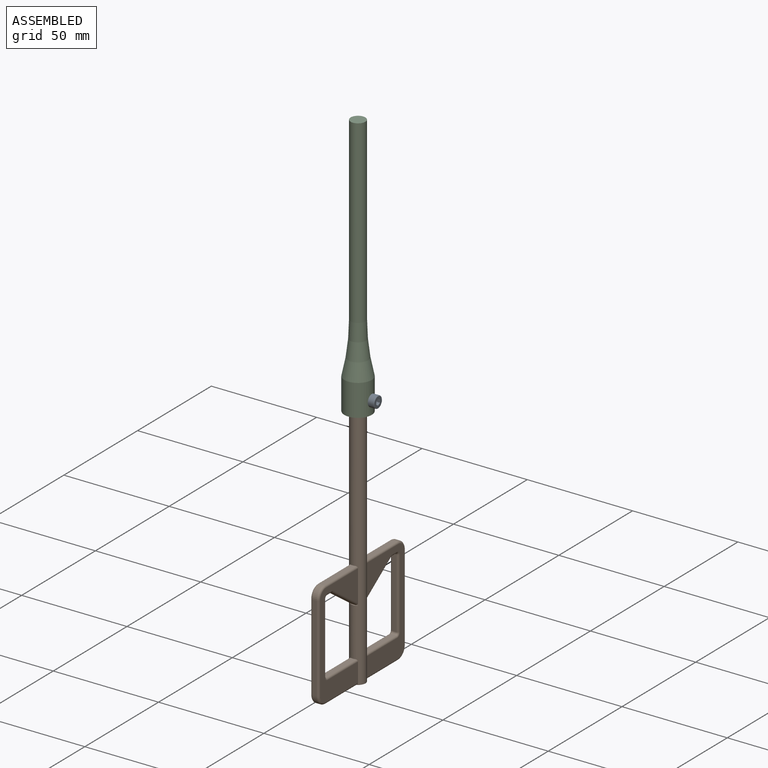
[diagram: assembled view]
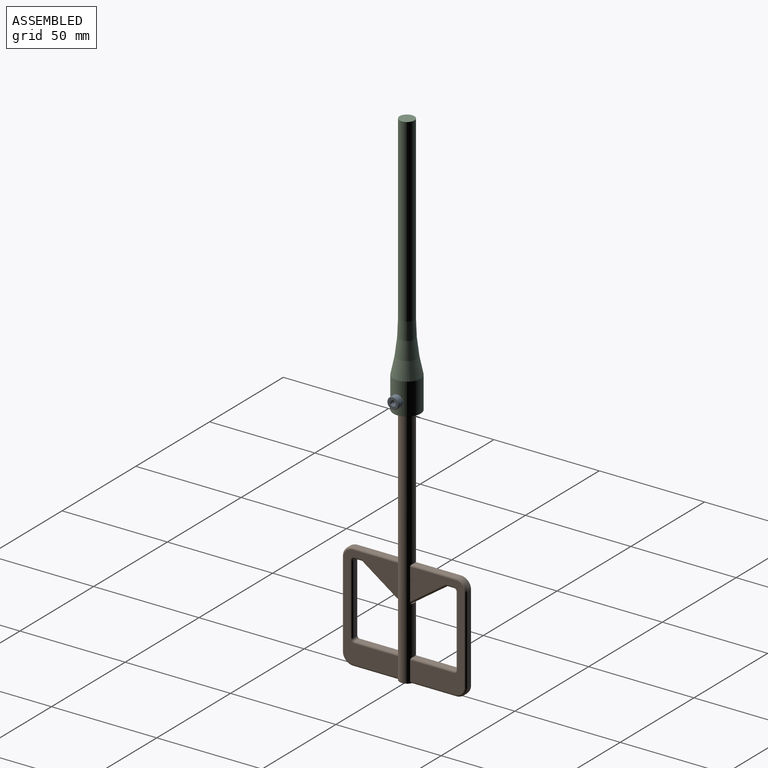
[diagram: assembled view, second angle]
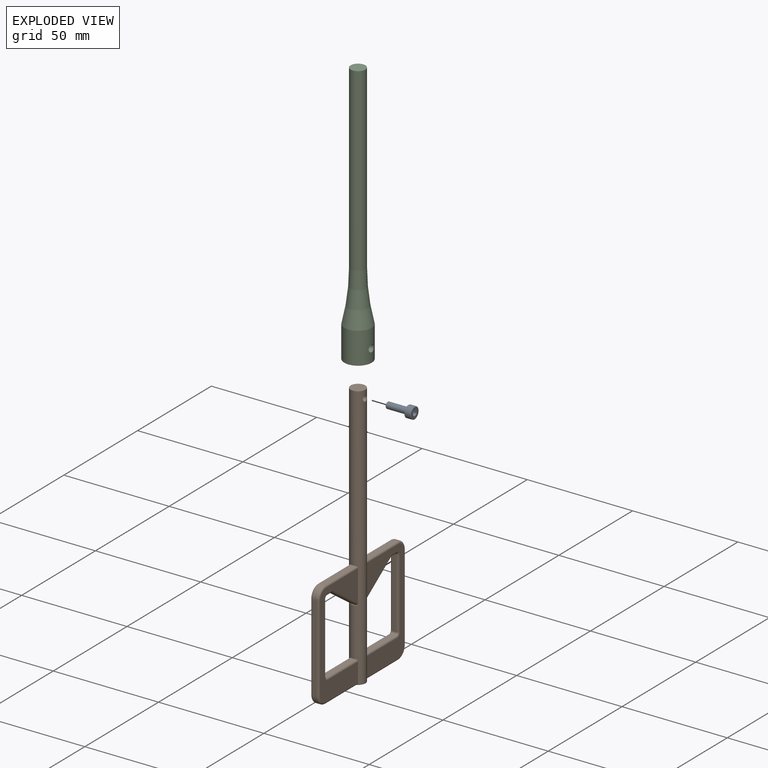
[diagram: exploded view]
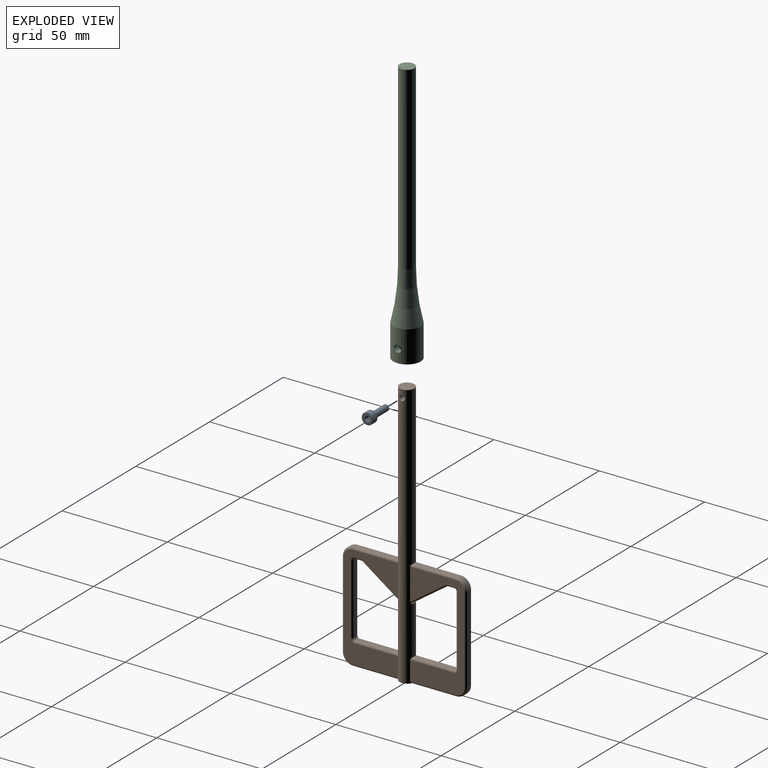
[diagram: exploded view, second angle]
ASSEMBLY  parts=3 mates=2
PART A: 18 faces, bbox 6x6x13 mm
  f0: cone r=1.36mm half-angle=45deg, axis (0,0,1), area 3.3mm2, adj f1,f16
  f1: cylinder r=1.5mm len=9.26mm, axis (0,0,-1), area 87.3mm2, adj f0,f15
  f2: cone r=1.36mm half-angle=45deg, axis (0,0,1), area 3.3mm2, adj f3,f15
  f3: cylinder r=1.5mm len=3mm, axis (0,0,-1), area 0.5mm2, adj f2,f4
  f4: torus R=1.65mm, axis (0,0,-1), area 2.3mm2, adj f3,f14
  f5: cylinder r=2.75mm len=5.5mm, axis (0,0,-1), area 47.1mm2, adj f6,f14
  f6: torus R=2.48mm, axis (0,0,-1), area 7.2mm2, adj f5,f17
  f7: cone r=0.72mm half-angle=60deg, axis (0,0,1), area 6.2mm2, adj f8,f9,f10,f11,f12,f13
  f8: plane 1.47x1.25mm, normal (0.87,0.5,0), area 2mm2, adj f7,f9,f13,f17
  f9: plane 1.47x1.44mm, normal (0,1,0), area 2mm2, adj f7,f8,f10,f17
  f10: plane 1.47x1.25mm, normal (-0.87,0.5,0), area 2mm2, adj f7,f9,f11,f17
  f11: plane 1.47x1.25mm, normal (-0.87,-0.5,0), area 2mm2, adj f7,f10,f12,f17
  f12: plane 1.44x1.43mm, normal (0,-1,0), area 2mm2, adj f7,f11,f13,f17
  f13: plane 1.47x1.25mm, normal (0.87,-0.5,0), area 2mm2, adj f7,f8,f12,f17
  f14: plane 5.5x5.5mm, normal (0,0,-1), area 15.2mm2, adj f4,f5
  f15: plane 3x3mm, normal (0,0,1), area 2.3mm2, adj f1,f2
  f16: plane 2.46x2.46mm, normal (0,0,-1), area 4.7mm2, adj f0
  f17: plane 4.95x4.95mm, normal (0,0,1), area 13.8mm2, adj f6,f8,f9,f10,f11,f12,f13
PART B: 76 faces, bbox 7x59.8x126.4 mm
  f0: cylinder r=3.5mm len=126mm, axis (0,0,-1), area 2524.5mm2, adj f1,f2,f3,f4,f6,f7,f9,f10
  f1: cylinder r=3.5mm len=1mm, axis (0,0,-1), area 0.2mm2, adj f0,f12,f42
  f2: cylinder r=3.5mm len=1.22mm, axis (0,0,-1), area 0.3mm2, adj f0,f3,f59
  f3: plane 17.34x12.14mm, normal (0,-0.57,-0.82), area 43mm2, adj f0,f2,f13,f22,f49,f59
  f4: plane 20.15x2mm, normal (0,0,1), area 40.1mm2, adj f0,f63,f70,f71
  f5: plane 41x2mm, normal (0,1,0), area 82mm2, adj f23,f26,f29,f34
  f6: plane 49x25.63mm, normal (-1,0,0), area 511.6mm2, adj f0,f27,f28,f29,f30,f31,f61,f62
  f7: plane 49x25.63mm, normal (-1,0,0), area 511.6mm2, adj f0,f42,f43,f44,f45,f46,f50,f54
  f8: plane 41x2mm, normal (0,-1,0), area 82mm2, adj f24,f25,f39,f44
  f9: plane 49x25.63mm, normal (1,0,0), area 511.6mm2, adj f0,f37,f38,f39,f40,f41,f47,f48
  f10: plane 49x25.63mm, normal (1,0,0), area 511.6mm2, adj f0,f32,f33,f34,f35,f36,f66,f69
  f11: plane 21.15x2mm, normal (0,0,1), area 42.1mm2, adj f0,f23,f27,f32
  f12: plane 49x7mm, normal (0,0,-1), area 122.7mm2, adj f0,f1,f25,f26,f31,f36,f37,f42
  f13: plane 4x0.63mm, normal (0,0,1), area 1.7mm2, adj f0,f3
  f14: plane 4x0.63mm, normal (0,0,1), area 1.7mm2, adj f0,f15
  f15: plane 17.34x12.14mm, normal (0,0.57,-0.82), area 43mm2, adj f0,f14,f21,f61,f66
  f16: plane 21.15x2mm, normal (0,0,1), area 42.1mm2, adj f0,f24,f41,f46
  f17: plane 7x7mm, normal (0,0,1), area 38.5mm2, adj f0
  f18: plane 20.15x2mm, normal (0,0,1), area 40.1mm2, adj f0,f47,f50,f51
  f19: plane 33.14x2mm, normal (0,-1,0), area 66.3mm2, adj f64,f68,f71,f74
  f20: plane 33.14x2mm, normal (0,1,0), area 66.3mm2, adj f51,f52,f56,f57
  f21: plane 3.28x2mm, normal (0,0,-1), area 6.6mm2, adj f15,f62,f68,f69
  f22: plane 3.28x2mm, normal (0,0,-1), area 6.6mm2, adj f3,f53,f57,f60
  f23: cylinder r=5mm len=5mm, axis (1,0,0), area 15.7mm2, adj f5,f11,f28,f33
  f24: cylinder r=5mm len=5mm, axis (-1,0,0), area 15.7mm2, adj f8,f16,f40,f45
  f25: cylinder r=5mm len=5mm, axis (1,0,0), area 15.7mm2, adj f8,f12,f38,f43
  f26: cylinder r=5mm len=5mm, axis (-1,0,0), area 15.7mm2, adj f5,f12,f30,f35
  f27: cylinder r=1mm len=21.63mm, axis (0,1,0), area 33.7mm2, adj f0,f6,f11,f28
  f28: torus R=4mm, axis (1,0,0), area 11.4mm2, adj f6,f23,f27,f29
  f29: cylinder r=1mm len=41mm, axis (0,0,1), area 64.4mm2, adj f5,f6,f28,f30
  f30: torus R=4mm, axis (1,0,0), area 11.4mm2, adj f6,f26,f29,f31
  f31: cylinder r=1mm len=21.63mm, axis (0,-1,0), area 33.7mm2, adj f0,f6,f12,f30
  f32: cylinder r=1mm len=21.63mm, axis (0,-1,0), area 33.7mm2, adj f0,f10,f11,f33
  f33: torus R=4mm, axis (1,0,0), area 11.4mm2, adj f10,f23,f32,f34
  f34: cylinder r=1mm len=41mm, axis (0,0,-1), area 64.4mm2, adj f5,f10,f33,f35
  f35: torus R=4mm, axis (1,0,0), area 11.4mm2, adj f10,f26,f34,f36
  f36: cylinder r=1mm len=21.63mm, axis (0,1,0), area 33.7mm2, adj f0,f10,f12,f35
  f37: cylinder r=1mm len=21.63mm, axis (0,1,0), area 33.7mm2, adj f0,f9,f12,f38
  f38: torus R=4mm, axis (1,0,0), area 11.4mm2, adj f9,f25,f37,f39
  f39: cylinder r=1mm len=41mm, axis (0,0,1), area 64.4mm2, adj f8,f9,f38,f40
  f40: torus R=4mm, axis (1,0,0), area 11.4mm2, adj f9,f24,f39,f41
  f41: cylinder r=1mm len=21.63mm, axis (0,-1,0), area 33.7mm2, adj f0,f9,f16,f40
  f42: cylinder r=1mm len=21.63mm, axis (0,-1,0), area 33.7mm2, adj f1,f7,f12,f43
  f43: torus R=4mm, axis (1,0,0), area 11.4mm2, adj f7,f25,f42,f44
  f44: cylinder r=1mm len=41mm, axis (0,0,-1), area 64.4mm2, adj f7,f8,f43,f45
  f45: torus R=4mm, axis (1,0,0), area 11.4mm2, adj f7,f24,f44,f46
  f46: cylinder r=1mm len=21.63mm, axis (0,1,0), area 33.7mm2, adj f0,f7,f16,f45
  f47: cylinder r=1mm len=20.63mm, axis (0,-1,0), area 32.1mm2, adj f0,f9,f18,f48
  f48: torus R=2mm, axis (1,0,0), area 3.4mm2, adj f9,f47,f51,f52
  f49: cylinder r=1mm len=17.82mm, axis (0,0.82,-0.57), area 32.6mm2, adj f0,f3,f9,f53
  f50: cylinder r=1mm len=20.63mm, axis (0,1,0), area 32.1mm2, adj f0,f7,f18,f54
  f51: cylinder r=1mm len=2mm, axis (-1,0,0), area 3.1mm2, adj f18,f20,f48,f54
  f52: cylinder r=1mm len=33.14mm, axis (0,0,1), area 52.1mm2, adj f9,f20,f48,f55
  f53: cylinder r=1mm len=3.6mm, axis (0,1,0), area 5.3mm2, adj f9,f22,f49,f55
  f54: torus R=2mm, axis (1,0,0), area 3.4mm2, adj f7,f50,f51,f56
  f55: torus R=2mm, axis (1,0,0), area 3.4mm2, adj f9,f52,f53,f57
  f56: cylinder r=1mm len=33.14mm, axis (0,0,-1), area 52.1mm2, adj f7,f20,f54,f58
  f57: cylinder r=1mm len=2mm, axis (1,0,0), area 3.1mm2, adj f20,f22,f55,f58
  f58: torus R=2mm, axis (1,0,0), area 3.4mm2, adj f7,f56,f57,f60
  f59: cylinder r=1mm len=17.82mm, axis (0,0.82,-0.57), area 32.6mm2, adj f2,f3,f7,f60
  f60: cylinder r=1mm len=3.6mm, axis (0,-1,0), area 5.3mm2, adj f7,f22,f58,f59
  f61: cylinder r=1mm len=17.82mm, axis (0,0.82,0.57), area 32.6mm2, adj f0,f6,f15,f62
  f62: cylinder r=1mm len=3.6mm, axis (0,-1,0), area 5.3mm2, adj f6,f21,f61,f65
  f63: cylinder r=1mm len=20.63mm, axis (0,1,0), area 32.1mm2, adj f0,f4,f6,f67
  f64: cylinder r=1mm len=33.14mm, axis (0,0,1), area 52.1mm2, adj f6,f19,f65,f67
  f65: torus R=2mm, axis (1,0,0), area 3.4mm2, adj f6,f62,f64,f68
  f66: cylinder r=1mm len=17.82mm, axis (0,0.82,0.57), area 32.6mm2, adj f0,f10,f15,f69
  f67: torus R=2mm, axis (1,0,0), area 3.4mm2, adj f6,f63,f64,f71
  f68: cylinder r=1mm len=2mm, axis (1,0,0), area 3.1mm2, adj f19,f21,f65,f72
  f69: cylinder r=1mm len=3.6mm, axis (0,1,0), area 5.3mm2, adj f10,f21,f66,f72
  f70: cylinder r=1mm len=20.63mm, axis (0,-1,0), area 32.1mm2, adj f0,f4,f10,f73
  f71: cylinder r=1mm len=2mm, axis (1,0,0), area 3.1mm2, adj f4,f19,f67,f73
  f72: torus R=2mm, axis (1,0,0), area 3.4mm2, adj f10,f68,f69,f74
  f73: torus R=2mm, axis (1,0,0), area 3.4mm2, adj f10,f70,f71,f74
  f74: cylinder r=1mm len=33.14mm, axis (0,0,-1), area 52.1mm2, adj f10,f19,f72,f73
  f75: cylinder r=1.35mm len=7mm, axis (-1,0,0), area 57.1mm2, adj f0
PART C: 8 faces, bbox 70.4x70.4x156.7 mm
  f0: cylinder r=6.5mm len=15mm, axis (0,0,-1), area 603.4mm2, adj f2,f6,f7
  f1: cylinder r=3.65mm len=10mm, axis (0,0,-1), area 220mm2, adj f2,f3,f7
  f2: plane 13x13mm, normal (0,0,-1), area 90.9mm2, adj f0,f1
  f3: plane 7.3x7.3mm, normal (0,0,-1), area 41.9mm2, adj f1
  f4: cylinder r=3.5mm len=85.69mm, axis (0,0,-1), area 1884.4mm2, adj f5,f6
  f5: plane 7x7mm, normal (0,0,1), area 38.5mm2, adj f4
  f6: torus R=103.5mm, axis (0,0,-1), area 694.6mm2, adj f0,f4
  f7: cylinder r=1.7mm len=3.4mm, axis (-1,0,0), area 31.4mm2, adj f0,f1
PLACE A rot(axis=(-0.71,0,-0.71),180deg) t=(-36.37,3.75,102.05)mm
PLACE B t=(-42.92,3.75,-20.21)mm
PLACE C t=(-42.92,3.75,95.79)mm
MATE fastened A.f7 <-> B.f75  axis (-1,0,0) through (-36.37,3.75,102.05)mm
MATE fastened C.f1 <-> B.f0  axis (0,0,-1) through (-42.92,3.75,105.79)mm
